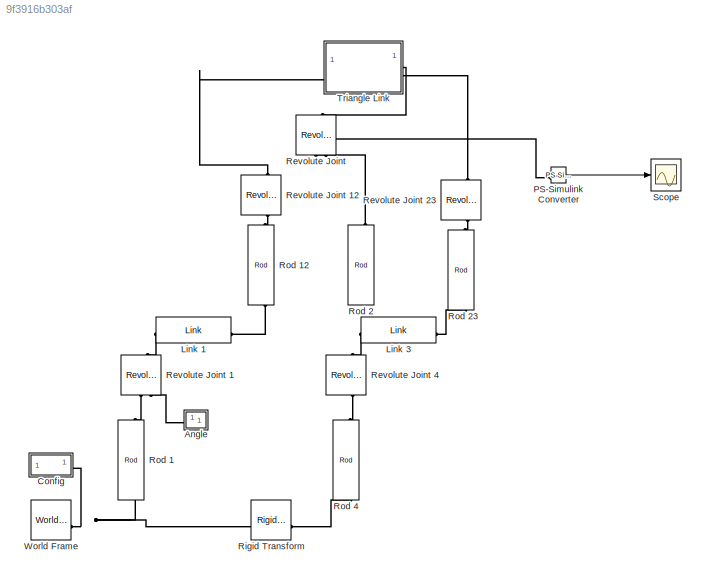
MODEL slx_9f3916b303af
KIND model
CONFIG AbsTol = 1e-6
CONFIG EnableMultiTasking = on
CONFIG FixedStep = auto
CONFIG MaxStep = auto
CONFIG MinStep = auto
CONFIG RelTol = 1e-4
CONFIG SampleTimeConstraint = Unconstrained
CONFIG SolverName = VariableStepAuto
CONFIG StartTime = 0.0
CONFIG StopTime = 3
WORKSPACE source: MATLAB code (in-file)
WORKSPACE code: parallelogram.len_1 = 0.15;
WORKSPACE code: parallelogram.len_2 = 0.2;
WORKSPACE code: parallelogram.len_3 = 0.15;
WORKSPACE code: parallelogram.len_4 = 0.2;
WORKSPACE code: crankrocker.len_1 = 0.15;
WORKSPACE code: crankrocker.len_2 = 0.35;
WORKSPACE code: crankrocker.len_3 = 0.3;
WORKSPACE code: crankrocker.len_4 = 0.25;
WORKSPACE code: draglink.len_1 = 0.2;
WORKSPACE code: draglink.len_2 = 0.3;
WORKSPACE code: draglink.len_3 = 0.35;
WORKSPACE code: draglink.len_4 = 0.1;
WORKSPACE fourbar = parallelogram
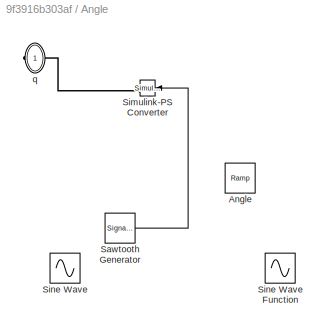
BLOCK [SubSystem] Angle
BLOCK [Reference] Angle/Angle  REF=simulink/Sources/Ramp
  Commented = on
  SourceBlock = simulink/Sources/Ramp
  SourceType = Ramp
BLOCK [SignalGenerator] Angle/Sawtooth Generator
  Amplitude = 75
  Units = rad/sec
BLOCK [Reference] Angle/Simulink-PS Converter  REF=nesl_utility/Simulink-PS
Converter
  SourceBlock = nesl_utility/Simulink-PS\nConverter
  SourceType = Simulink-PS\nConverter
BLOCK [Sin] Angle/Sine Wave
  Commented = on
  Frequency = 0.7
  SampleTime = 0
BLOCK [Sin] Angle/Sine Wave Function
  Amplitude = 25
  Commented = on
  Frequency = 0.2
  Phase = 1
  SampleTime = 0
  TimeSource = Use external signal
BLOCK [PMIOPort] Angle/q
  Side = Right
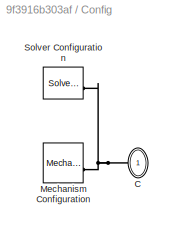
BLOCK [SubSystem] Config
BLOCK [PMIOPort] Config/C
  NameLocation = top
  Side = Left
BLOCK [Reference] Config/Mechanism Configuration  REF=sm_lib/Utilities/Mechanism
Configuration
  SourceBlock = sm_lib/Utilities/Mechanism\nConfiguration
  SourceType = Mechanism\nConfiguration
BLOCK [Reference] Config/Solver Configuration  REF=nesl_utility/Solver
Configuration
  SourceBlock = nesl_utility/Solver\nConfiguration
  SourceType = Solver\nConfiguration
BLOCK [Reference] Link 1  REF=Multibody_Parts_Lib/Linkages/Link
  NameLocation = top
  SourceBlock = Multibody_Parts_Lib/Linkages/Link
  SourceProductName = Simscape Multibody Parts Library
  SourceType = Link with Rounded Ends
BLOCK [Reference] Link 3  REF=Multibody_Parts_Lib/Linkages/Link
  NameLocation = top
  SourceBlock = Multibody_Parts_Lib/Linkages/Link
  SourceProductName = Simscape Multibody Parts Library
  SourceType = Link with Rounded Ends
BLOCK [Reference] PS-Simulink Converter  REF=nesl_utility/PS-Simulink
Converter
  SourceBlock = nesl_utility/PS-Simulink\nConverter
  SourceType = PS-Simulink\nConverter
BLOCK [Reference] Revolute Joint  REF=sm_lib/Joints/Revolute Joint
  NameLocation = left
  SourceBlock = sm_lib/Joints/Revolute Joint
  SourceType = Revolute Joint
BLOCK [Reference] Revolute Joint 1  REF=sm_lib/Joints/Revolute Joint
  NameLocation = right
  SourceBlock = sm_lib/Joints/Revolute Joint
  SourceType = Revolute Joint
BLOCK [Reference] Revolute Joint 12  REF=sm_lib/Joints/Revolute Joint
  NameLocation = right
  SourceBlock = sm_lib/Joints/Revolute Joint
  SourceType = Revolute Joint
BLOCK [Reference] Revolute Joint 23  REF=sm_lib/Joints/Revolute Joint
  NameLocation = left
  SourceBlock = sm_lib/Joints/Revolute Joint
  SourceType = Revolute Joint
BLOCK [Reference] Revolute Joint 4  REF=sm_lib/Joints/Revolute Joint
  NameLocation = left
  SourceBlock = sm_lib/Joints/Revolute Joint
  SourceType = Revolute Joint
BLOCK [Reference] Rigid Transform  REF=sm_lib/Frames and
Transforms/Rigid
Transform
  NameLocation = top
  SourceBlock = sm_lib/Frames and\nTransforms/Rigid\nTransform
  SourceType = Rigid\nTransform
BLOCK [Reference] Rod 1  REF=Multibody_Parts_Lib/Basic/Rod
  NameLocation = right
  SourceBlock = Multibody_Parts_Lib/Basic/Rod
  SourceProductName = Simscape Multibody Parts Library
  SourceType = Rod
BLOCK [Reference] Rod 12  REF=Multibody_Parts_Lib/Basic/Rod
  NameLocation = right
  SourceBlock = Multibody_Parts_Lib/Basic/Rod
  SourceProductName = Simscape Multibody Parts Library
  SourceType = Rod
BLOCK [Reference] Rod 2  REF=Multibody_Parts_Lib/Basic/Rod
  NameLocation = left
  SourceBlock = Multibody_Parts_Lib/Basic/Rod
  SourceProductName = Simscape Multibody Parts Library
  SourceType = Rod
BLOCK [Reference] Rod 23  REF=Multibody_Parts_Lib/Basic/Rod
  NameLocation = left
  SourceBlock = Multibody_Parts_Lib/Basic/Rod
  SourceProductName = Simscape Multibody Parts Library
  SourceType = Rod
BLOCK [Reference] Rod 4  REF=Multibody_Parts_Lib/Basic/Rod
  NameLocation = left
  SourceBlock = Multibody_Parts_Lib/Basic/Rod
  SourceProductName = Simscape Multibody Parts Library
  SourceType = Rod
BLOCK [Scope] Scope
  ActiveDisplayYMaximum = 1.6413347028873464
  ActiveDisplayYMinimum = -0.18237052254303845
  Floating = off
  GraphicalSettings = {"Style":{"BackgroundColor":[0.12941176470588237,0.12941176470588237,0.12941176470588237],"AxesColor":[0.07058823529411765,0.07058823529411765,0.07058823529411765],"LabelsColor":[0.8509803921568627,0.8509803921568627,0.8509803921568627],"PreserveColors":false,"Visible":[true],"LineStyle":["-"],"LineWidth":[1.5],"BarWidth":[0.9],"LineColor":["auto"],"LineFaceAlpha":[1],"LineEdgeAlpha":[1],"Marker":...<+2029ch>
  MultipleDisplayCache = [{"MaxYLimMag":1.6413347028873464,"MaxYLimReal":1.6413347028873464,"MinYLimMag":0,"MinYLimReal":-0.18237052254303845,"PlotAsMagnitudePhase":false,"ShowGrid":true,"ShowLegend":false,"Title":"%<SignalLabel>","YLabel":""}]
  NumInputPorts = 1
  ScopeFrameLocation = window
  WasSavedAsWebScope = on
  WindowPosition = [476.000000,281.000000,560.000000,420.000000,]
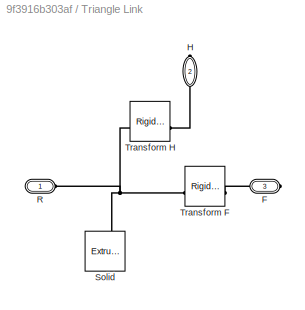
BLOCK [SubSystem] Triangle Link
  AncestorBlock = Multibody_Parts_Lib/Linkages/Triangle Link
  NameLocation = top
BLOCK [PMIOPort] Triangle Link/F
  Port = 3
  Side = Right
BLOCK [PMIOPort] Triangle Link/H
  NameLocation = right
  Port = 2
  Side = Right
BLOCK [PMIOPort] Triangle Link/R
  Side = Left
BLOCK [Reference] Triangle Link/Solid  REF=sm_lib/Body Elements/Extruded Solid
  NameLocation = right
  SourceBlock = sm_lib/Body Elements/Extruded Solid
  SourceType = Extruded Solid
BLOCK [Reference] Triangle Link/Transform F  REF=sm_lib/Frames and
Transforms/Rigid
Transform
  SourceBlock = sm_lib/Frames and\nTransforms/Rigid\nTransform
  SourceType = Rigid\nTransform
BLOCK [Reference] Triangle Link/Transform H  REF=sm_lib/Frames and
Transforms/Rigid
Transform
  SourceBlock = sm_lib/Frames and\nTransforms/Rigid\nTransform
  SourceType = Rigid\nTransform
BLOCK [Reference] World Frame  REF=sm_lib/Frames and
Transforms/World Frame
  SourceBlock = sm_lib/Frames and\nTransforms/World Frame
  SourceType = World Frame
LINE Angle/Sawtooth Generator:1 -> Angle/Simulink-PS Converter:1
LINE PS-Simulink Converter:1 -> Scope:1
PLINE Angle/Simulink-PS Converter:RConn1 -- Angle/q:RConn1
PLINE Angle:RConn1 -- Revolute Joint 1:LConn2
PNET net1: Config/C:RConn1 -- Config/Mechanism Configuration:RConn1 -- Config/Solver Configuration:RConn1
PNET net2: Config:LConn1 -- Rigid Transform:LConn1 -- Rod 1:LConn1 -- World Frame:RConn1
PLINE Link 1:LConn1 -- Revolute Joint 1:RConn1
PLINE Link 1:RConn1 -- Rod 12:LConn1
PLINE Link 3:LConn1 -- Revolute Joint 4:RConn1
PLINE Link 3:RConn1 -- Rod 23:LConn1
PLINE PS-Simulink Converter:LConn1 -- Revolute Joint:RConn2
PLINE Revolute Joint 12:LConn1 -- Rod 12:RConn1
PLINE Revolute Joint 12:RConn1 -- Triangle Link:RConn2
PLINE Revolute Joint 1:LConn1 -- Rod 1:RConn1
PLINE Revolute Joint 23:LConn1 -- Rod 23:RConn1
PLINE Revolute Joint 23:RConn1 -- Triangle Link:LConn1
PLINE Revolute Joint 4:LConn1 -- Rod 4:RConn1
PLINE Revolute Joint:LConn1 -- Triangle Link:RConn1
PLINE Revolute Joint:RConn1 -- Rod 2:LConn1
PLINE Rigid Transform:RConn1 -- Rod 4:LConn1
note: PNET lines group multi-terminal physical nets as a canonical sorted terminal list (undirected conserving connections); 2-terminal nets keep the pairwise PLINE form
